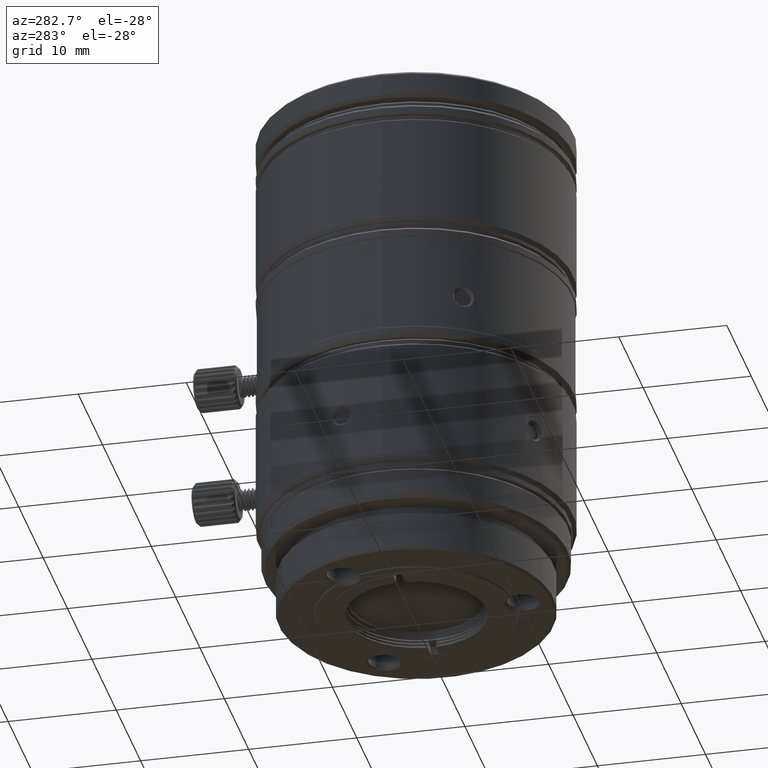
[diagram: clean part render]
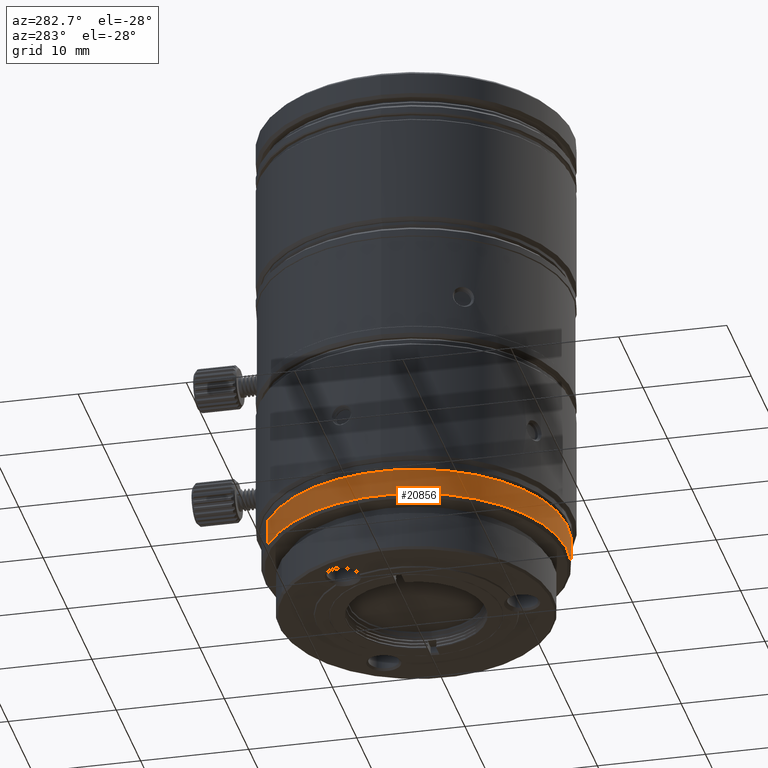
[diagram: same view with one face highlighted and labeled with its STEP entity id]
A machine part, auxiliary view. The second image highlights one B-rep face of the part: STEP entity #20856.
In plain terms, the highlighted cylindrical surface (partial cylindrical patch) has radius 14 mm, axis along (0, 0, 1).
Its self-contained STEP definition (entity closure, byte-faithful):
#251 = CARTESIAN_POINT ( 'NONE',  ( 0.000000000000000000, 0.000000000000000000, -9.217626701506000941 ) ) ;
#2653 = EDGE_CURVE ( 'NONE', #15875, #28176, #4400, .T. ) ;
#3354 = AXIS2_PLACEMENT_3D ( 'NONE', #251, #12221, #3754 ) ;
#3754 = DIRECTION ( 'NONE',  ( 0.4999999999999731881, -0.8660254037844542507, 0.000000000000000000 ) ) ;
#3789 = CARTESIAN_POINT ( 'NONE',  ( -7.000000073979622428, 12.12435578111947976, -3.187626696443000451 ) ) ;
#3823 = AXIS2_PLACEMENT_3D ( 'NONE', #37011, #21800, #26027 ) ;
#4400 = LINE ( 'NONE', #19610, #8976 ) ;
#8476 = FACE_OUTER_BOUND ( 'NONE', #25929, .T. ) ;
#8976 = VECTOR ( 'NONE', #12122, 1000.000000000000000 ) ;
#11240 = CYLINDRICAL_SURFACE ( 'NONE', #3354, 14.00000014795999626 ) ;
#11897 = ORIENTED_EDGE ( 'NONE', *, *, #45028, .T. ) ;
#12122 = DIRECTION ( 'NONE',  ( 0.000000000000000000, 0.000000000000000000, 1.000000000000000000 ) ) ;
#12221 = DIRECTION ( 'NONE',  ( 0.000000000000000000, 0.000000000000000000, 1.000000000000000000 ) ) ;
#13628 = CARTESIAN_POINT ( 'NONE',  ( 7.000000073912332255, -12.12435578100289391, -0.7317281657000009876 ) ) ;
#15875 = VERTEX_POINT ( 'NONE', #3789 ) ;
#19391 = ORIENTED_EDGE ( 'NONE', *, *, #2653, .F. ) ;
#19610 = CARTESIAN_POINT ( 'NONE',  ( -7.000000073979620652, 12.12435578111947621, -9.217626701506000941 ) ) ;
#20201 = AXIS2_PLACEMENT_3D ( 'NONE', #44631, #32673, #32921 ) ;
#20512 = ORIENTED_EDGE ( 'NONE', *, *, #34355, .T. ) ;
#20856 = ADVANCED_FACE ( 'NONE', ( #8476 ), #11240, .T. ) ;
#21800 = DIRECTION ( 'NONE',  ( 0.000000000000000000, 0.000000000000000000, -1.000000000000000000 ) ) ;
#22742 = VERTEX_POINT ( 'NONE', #47858 ) ;
#25929 = EDGE_LOOP ( 'NONE', ( #19391, #11897, #45231, #20512 ) ) ;
#26027 = DIRECTION ( 'NONE',  ( 0.4999999999999731881, -0.8660254037844542507, 0.000000000000000000 ) ) ;
#28176 = VERTEX_POINT ( 'NONE', #28434 ) ;
#28434 = CARTESIAN_POINT ( 'NONE',  ( -7.000000073912328702, 12.12435578100289391, -0.7317281657000009876 ) ) ;
#29698 = VERTEX_POINT ( 'NONE', #13628 ) ;
#32612 = LINE ( 'NONE', #48045, #49183 ) ;
#32673 = DIRECTION ( 'NONE',  ( 0.000000000000000000, 0.000000000000000000, 1.000000000000000000 ) ) ;
#32921 = DIRECTION ( 'NONE',  ( -0.4999999999999731881, 0.8660254037844542507, 0.000000000000000000 ) ) ;
#34355 = EDGE_CURVE ( 'NONE', #29698, #28176, #39641, .T. ) ;
#36353 = DIRECTION ( 'NONE',  ( 0.000000000000000000, 0.000000000000000000, 1.000000000000000000 ) ) ;
#37011 = CARTESIAN_POINT ( 'NONE',  ( 0.000000000000000000, 0.000000000000000000, -0.7317281657000009876 ) ) ;
#38366 = EDGE_CURVE ( 'NONE', #22742, #29698, #32612, .T. ) ;
#39641 = CIRCLE ( 'NONE', #3823, 14.00000014795999626 ) ;
#44631 = CARTESIAN_POINT ( 'NONE',  ( 0.000000000000000000, 0.000000000000000000, -3.187626696443000451 ) ) ;
#45028 = EDGE_CURVE ( 'NONE', #15875, #22742, #48825, .T. ) ;
#45231 = ORIENTED_EDGE ( 'NONE', *, *, #38366, .T. ) ;
#47858 = CARTESIAN_POINT ( 'NONE',  ( 7.000000073979624204, -12.12435578111947798, -3.187626696443000451 ) ) ;
#48045 = CARTESIAN_POINT ( 'NONE',  ( 7.000000073979622428, -12.12435578111947443, -9.217626701506000941 ) ) ;
#48825 = CIRCLE ( 'NONE', #20201, 14.00000014795999626 ) ;
#49183 = VECTOR ( 'NONE', #36353, 1000.000000000000000 ) ;